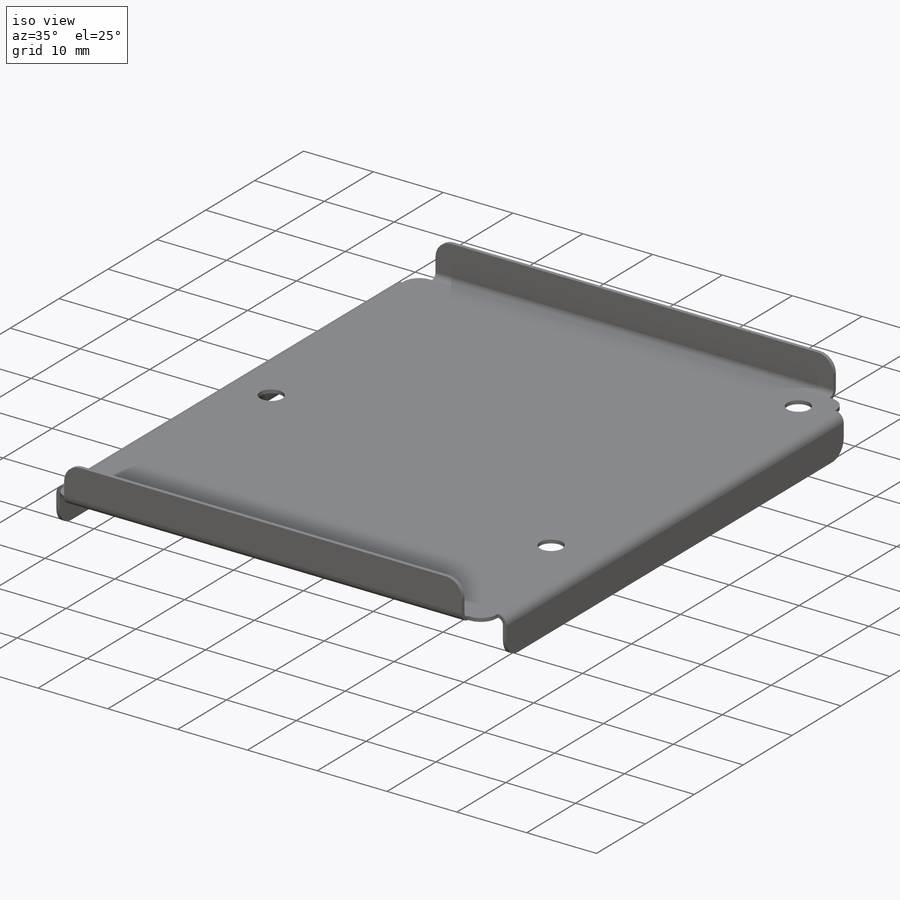
[diagram: iso view]
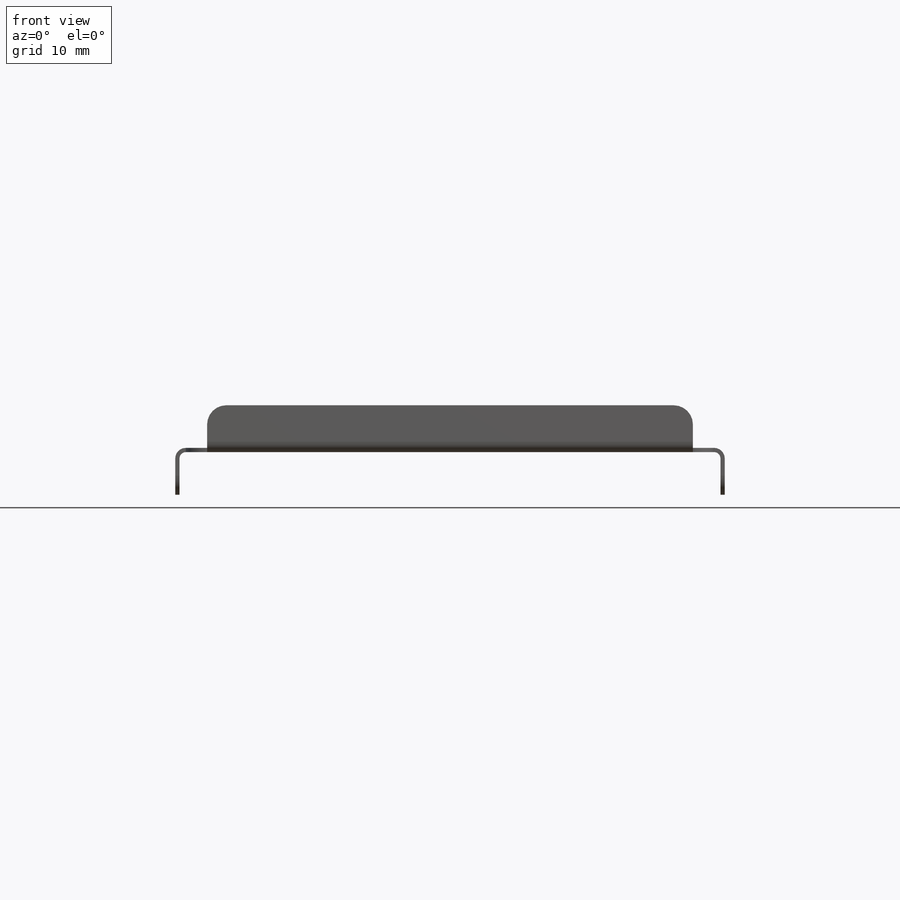
[diagram: front view]
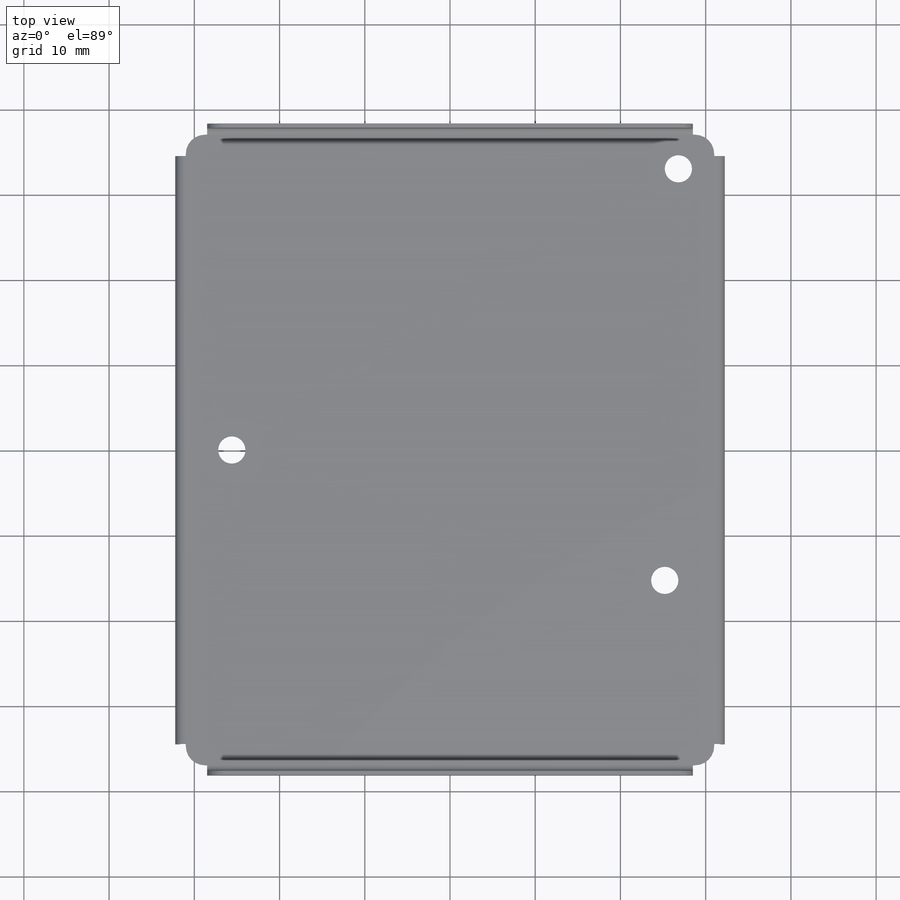
[diagram: top view]
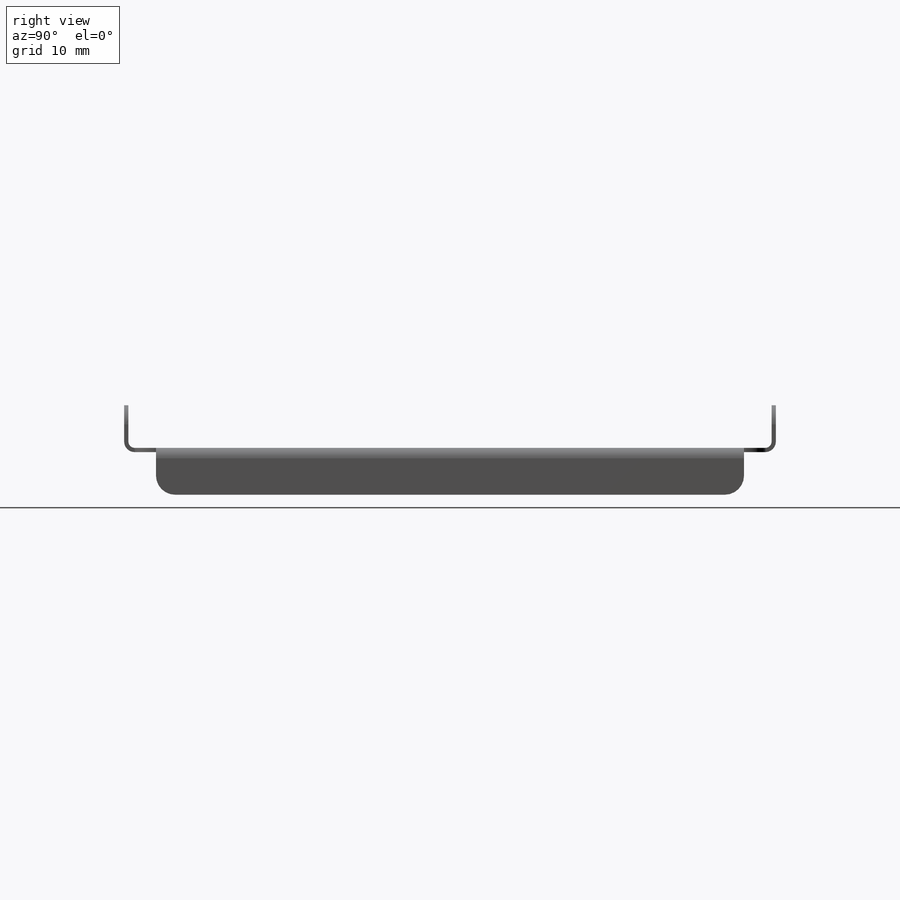
[diagram: right view]
SOLIDWORKS PART (.sldprt)
format: sldprt  version: not decoded by parser v0  size: 316,928 bytes
history: native  units: mm
features: sketch x8, sheet_metal_op x6, material x1, cut_extrude x1 + 4 further entries (+11 scaffold rows collapsed; 1 parser-record rows omitted)
feature tree (32):
  scaffold x11  (default folders/planes/origin — collapsed)
  material  "6061 Alloy"
  sketch  "Sketch2"  dims[D1=~101.112804mm D2=~138.636252mm]
  sheet_metal_op  "Sheet-Metal1"
  sheet_metal_op  "Base-Flange1"
  sketch  "Sketch5"  dims[D1=4.0mm]
  cut_extrude  "Cut-Extrude1"  [1 undecoded]
  sketch  "Sketch10"  dims[D1=2.5mm D2=5.0mm]
  sketch  "Sketch11"  dims[c1.D1=2.5mm c1.D2=5.0mm c2.D1=0.7366mm c2.D4=90.0deg c2.D5=1.0 c2.D8=0.25mm c2.D9=0.25mm]
  sheet_metal_op  "EdgeBend2"
  sheet_metal_op  "Edge-Flange2"
  sketch  "Sketch16"  dims[D1=2.5mm D2=5.0mm]
  sketch  "Sketch17"  dims[D1=2.5mm D2=5.0mm]
  sheet_metal_op  "EdgeBend3"
  sheet_metal_op  "EdgeBend4"
  "Flat-Pattern1"
  sketch  "Bend-Lines1"
  sketch  "Bounding-Box1"
  "Flatten-<EdgeBend2>1"
  "Flatten-<EdgeBend3>1"
  "Flatten-<EdgeBend4>1"
  parser-record x1  (decoder bookkeeping rows leaked as tree rows — omitted from the tree; the rows remain in map.json)
decode coverage: 6 of 15 modeling features carry decoded parameters; 4 rows unclassified (native names shown)
note: ~ marks probable driven/reference dimensions
note: 1 parameter value undecoded
note: suppression state not decoded; provenance and decode notes live in map.json
